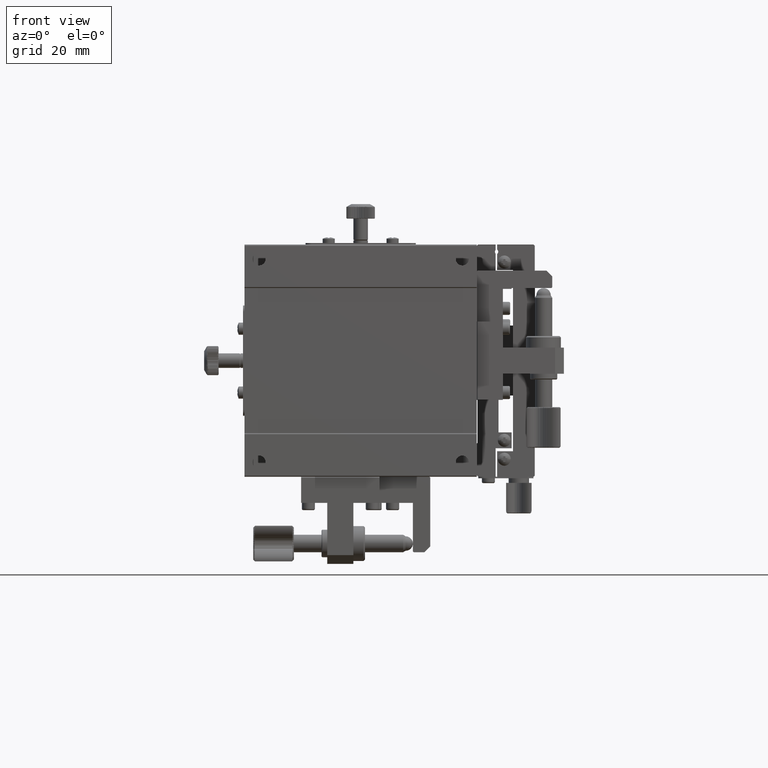
[diagram: clean part render]
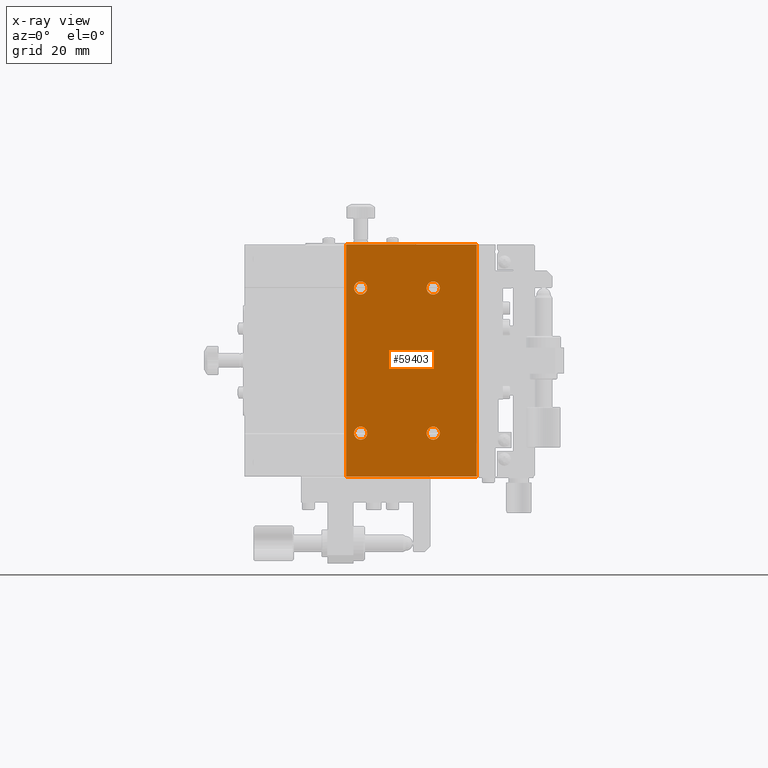
[diagram: x-ray — body ghosted, one internal face saturated and labeled with its STEP entity id]
A machine part, front view, then the same camera in x-ray: the body is ghosted and one INTERNAL B-rep face — a face not visible from any outside direction — is saturated and labeled: STEP entity #59403.
In plain terms, the highlighted planar face has unit normal (0, -1, 0).
Its self-contained STEP definition (entity closure, byte-faithful):
#1778 = PLANE ( 'NONE',  #59202 ) ;
#1917 = DIRECTION ( 'NONE',  ( -0.000000000000000000, 1.000000000000000000, -0.000000000000000000 ) ) ;
#3087 = LINE ( 'NONE', #28656, #71896 ) ;
#3468 = VERTEX_POINT ( 'NONE', #59349 ) ;
#4739 = VERTEX_POINT ( 'NONE', #77023 ) ;
#4923 = DIRECTION ( 'NONE',  ( 1.000000000000000000, 0.000000000000000000, 0.000000000000000000 ) ) ;
#5652 = ORIENTED_EDGE ( 'NONE', *, *, #70177, .T. ) ;
#6352 = ORIENTED_EDGE ( 'NONE', *, *, #70353, .T. ) ;
#6505 = LINE ( 'NONE', #12508, #32831 ) ;
#6862 = EDGE_LOOP ( 'NONE', ( #6352 ) ) ;
#6863 = EDGE_CURVE ( 'NONE', #57915, #76371, #6505, .T. ) ;
#8211 = ORIENTED_EDGE ( 'NONE', *, *, #49291, .T. ) ;
#10055 = DIRECTION ( 'NONE',  ( -0.000000000000000000, 1.000000000000000000, -0.000000000000000000 ) ) ;
#11871 = DIRECTION ( 'NONE',  ( 0.000000000000000000, 0.000000000000000000, -1.000000000000000000 ) ) ;
#12508 = CARTESIAN_POINT ( 'NONE',  ( -45.00000000000000000, 0.000000000000000000, 0.000000000000000000 ) ) ;
#13529 = VECTOR ( 'NONE', #4923, 1000.000000000000000 ) ;
#14150 = FACE_BOUND ( 'NONE', #74791, .T. ) ;
#14976 = AXIS2_PLACEMENT_3D ( 'NONE', #66022, #77997, #60827 ) ;
#16429 = CARTESIAN_POINT ( 'NONE',  ( -15.00000000000000000, 0.000000000000000000, -17.25000000000000000 ) ) ;
#16639 = DIRECTION ( 'NONE',  ( 0.000000000000000000, 0.000000000000000000, -1.000000000000000000 ) ) ;
#18798 = CIRCLE ( 'NONE', #14976, 2.250000000000001776 ) ;
#20152 = ORIENTED_EDGE ( 'NONE', *, *, #23525, .F. ) ;
#20162 = FACE_OUTER_BOUND ( 'NONE', #62733, .T. ) ;
#22324 = EDGE_CURVE ( 'NONE', #52778, #52778, #75560, .T. ) ;
#22331 = CARTESIAN_POINT ( 'NONE',  ( -45.00000000000000711, 0.000000000000000000, -80.00000000000000000 ) ) ;
#22608 = AXIS2_PLACEMENT_3D ( 'NONE', #65146, #10055, #76737 ) ;
#23525 = EDGE_CURVE ( 'NONE', #57915, #78316, #3087, .T. ) ;
#23739 = ORIENTED_EDGE ( 'NONE', *, *, #29870, .T. ) ;
#28656 = CARTESIAN_POINT ( 'NONE',  ( 0.000000000000000000, 0.000000000000000000, -80.00000000000000000 ) ) ;
#29715 = DIRECTION ( 'NONE',  ( -1.000000000000000000, -0.000000000000000000, -0.000000000000000000 ) ) ;
#29870 = EDGE_CURVE ( 'NONE', #59090, #78316, #46088, .T. ) ;
#31039 = DIRECTION ( 'NONE',  ( -0.000000000000000000, 1.000000000000000000, -0.000000000000000000 ) ) ;
#32183 = CARTESIAN_POINT ( 'NONE',  ( -45.00000000000000000, 0.000000000000000000, 0.000000000000000000 ) ) ;
#32831 = VECTOR ( 'NONE', #29715, 1000.000000000000000 ) ;
#33707 = VECTOR ( 'NONE', #41093, 1000.000000000000000 ) ;
#35028 = CARTESIAN_POINT ( 'NONE',  ( -40.00000000000000000, 0.000000000000000000, -17.25000000000000000 ) ) ;
#36230 = CIRCLE ( 'NONE', #56623, 2.250000000000001776 ) ;
#36365 = EDGE_CURVE ( 'NONE', #76371, #59090, #49927, .T. ) ;
#36763 = CARTESIAN_POINT ( 'NONE',  ( -5.204170427930421283E-15, 0.000000000000000000, -80.00000000000000000 ) ) ;
#39435 = DIRECTION ( 'NONE',  ( 0.000000000000000000, 0.000000000000000000, -1.000000000000000000 ) ) ;
#40218 = VERTEX_POINT ( 'NONE', #35028 ) ;
#41093 = DIRECTION ( 'NONE',  ( 0.000000000000000000, -0.000000000000000000, -1.000000000000000000 ) ) ;
#44519 = DIRECTION ( 'NONE',  ( 0.000000000000000000, -1.000000000000000000, 0.000000000000000000 ) ) ;
#45357 = EDGE_LOOP ( 'NONE', ( #52046 ) ) ;
#46088 = LINE ( 'NONE', #65622, #13529 ) ;
#47675 = ORIENTED_EDGE ( 'NONE', *, *, #6863, .T. ) ;
#49291 = EDGE_CURVE ( 'NONE', #4739, #4739, #36230, .T. ) ;
#49318 = FACE_BOUND ( 'NONE', #6862, .T. ) ;
#49927 = LINE ( 'NONE', #22331, #33707 ) ;
#50235 = CARTESIAN_POINT ( 'NONE',  ( -40.00000000000000000, 0.000000000000000000, -65.00000000000000000 ) ) ;
#52046 = ORIENTED_EDGE ( 'NONE', *, *, #22324, .T. ) ;
#52778 = VERTEX_POINT ( 'NONE', #16429 ) ;
#53892 = AXIS2_PLACEMENT_3D ( 'NONE', #54611, #31039, #11871 ) ;
#54611 = CARTESIAN_POINT ( 'NONE',  ( -15.00000000000000000, 0.000000000000000000, -15.00000000000000000 ) ) ;
#56483 = FACE_BOUND ( 'NONE', #45357, .T. ) ;
#56623 = AXIS2_PLACEMENT_3D ( 'NONE', #50235, #1917, #39435 ) ;
#57048 = CIRCLE ( 'NONE', #22608, 2.250000000000001776 ) ;
#57915 = VERTEX_POINT ( 'NONE', #60881 ) ;
#59090 = VERTEX_POINT ( 'NONE', #76117 ) ;
#59202 = AXIS2_PLACEMENT_3D ( 'NONE', #74866, #44519, #61275 ) ;
#59349 = CARTESIAN_POINT ( 'NONE',  ( -15.00000000000000000, 0.000000000000000000, -67.25000000000000000 ) ) ;
#59403 = ADVANCED_FACE ( 'NONE', ( #68461, #49318, #14150, #56483, #20162 ), #1778, .T. ) ;
#60093 = EDGE_LOOP ( 'NONE', ( #5652 ) ) ;
#60827 = DIRECTION ( 'NONE',  ( 0.000000000000000000, 0.000000000000000000, -1.000000000000000000 ) ) ;
#60881 = CARTESIAN_POINT ( 'NONE',  ( -5.204170427930421283E-15, 0.000000000000000000, 0.000000000000000000 ) ) ;
#61275 = DIRECTION ( 'NONE',  ( 0.000000000000000000, -0.000000000000000000, -1.000000000000000000 ) ) ;
#62733 = EDGE_LOOP ( 'NONE', ( #47675, #64890, #23739, #20152 ) ) ;
#64890 = ORIENTED_EDGE ( 'NONE', *, *, #36365, .T. ) ;
#65146 = CARTESIAN_POINT ( 'NONE',  ( -15.00000000000000000, 0.000000000000000000, -65.00000000000000000 ) ) ;
#65622 = CARTESIAN_POINT ( 'NONE',  ( -45.00000000000000000, 0.000000000000000000, -80.00000000000000000 ) ) ;
#66022 = CARTESIAN_POINT ( 'NONE',  ( -40.00000000000000000, 0.000000000000000000, -15.00000000000000000 ) ) ;
#68461 = FACE_BOUND ( 'NONE', #60093, .T. ) ;
#70177 = EDGE_CURVE ( 'NONE', #40218, #40218, #18798, .T. ) ;
#70353 = EDGE_CURVE ( 'NONE', #3468, #3468, #57048, .T. ) ;
#71896 = VECTOR ( 'NONE', #16639, 1000.000000000000000 ) ;
#74791 = EDGE_LOOP ( 'NONE', ( #8211 ) ) ;
#74866 = CARTESIAN_POINT ( 'NONE',  ( -45.00000000000000000, 0.000000000000000000, -80.00000000000000000 ) ) ;
#75560 = CIRCLE ( 'NONE', #53892, 2.250000000000001776 ) ;
#76117 = CARTESIAN_POINT ( 'NONE',  ( -45.00000000000000000, 0.000000000000000000, -80.00000000000000000 ) ) ;
#76371 = VERTEX_POINT ( 'NONE', #32183 ) ;
#76737 = DIRECTION ( 'NONE',  ( 0.000000000000000000, 0.000000000000000000, -1.000000000000000000 ) ) ;
#77023 = CARTESIAN_POINT ( 'NONE',  ( -40.00000000000000000, 0.000000000000000000, -67.25000000000000000 ) ) ;
#77997 = DIRECTION ( 'NONE',  ( -0.000000000000000000, 1.000000000000000000, -0.000000000000000000 ) ) ;
#78316 = VERTEX_POINT ( 'NONE', #36763 ) ;